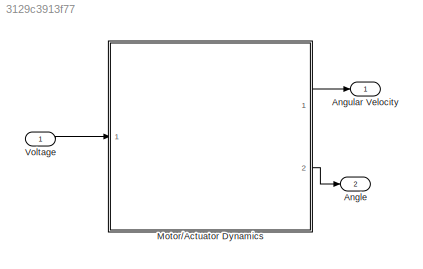
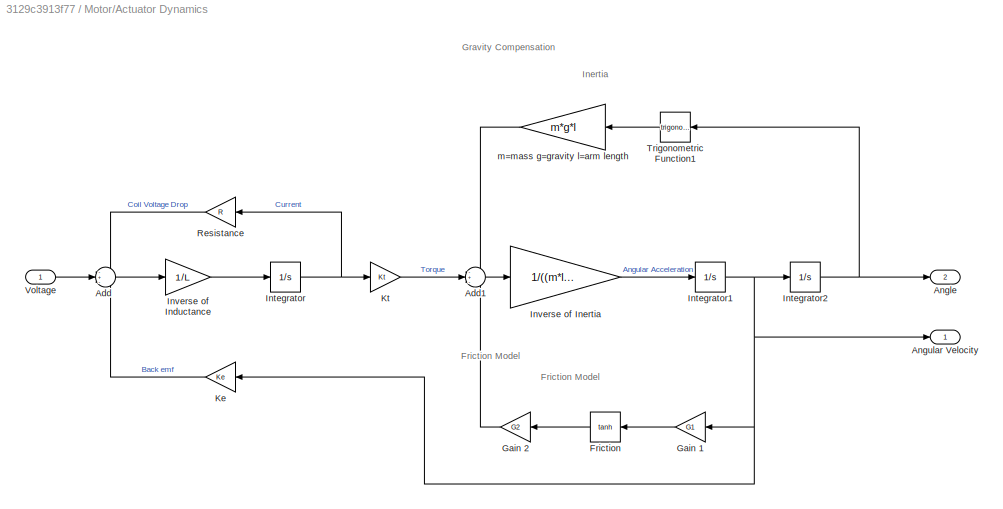
MODEL slx_3129c3913f77
KIND model
CONFIG AbsTol = auto
CONFIG FixedStep = auto
CONFIG MaxStep = auto
CONFIG MinStep = auto
CONFIG RelTol = 1e-3
CONFIG SampleTimeConstraint = Unconstrained
CONFIG Solver = VariableStepAuto
CONFIG SolverMode = Auto
CONFIG SolverName = VariableStepAuto
CONFIG StartTime = 0.0
CONFIG StopTime = 3.0
BLOCK [Outport] Angle
  IconDisplay = Port number
  Port = 2
BLOCK [Outport] Angular Velocity
  IconDisplay = Port number
BLOCK [SubSystem] Motor//Actuator Dynamics
  Ports = [1, 2]
  RequestExecContextInheritance = off
  Variant = off
BLOCK [Sum] Motor//Actuator Dynamics/Add
  IconShape = round
  InputSameDT = off
  Inputs = -+-
  OutDataTypeStr = Inherit: Inherit via internal rule
  Ports = [3, 1]
  SaturateOnIntegerOverflow = off
BLOCK [Sum] Motor//Actuator Dynamics/Add1
  IconShape = round
  InputSameDT = off
  Inputs = -+-
  OutDataTypeStr = Inherit: Inherit via internal rule
  Ports = [3, 1]
  SaturateOnIntegerOverflow = off
BLOCK [Outport] Motor//Actuator Dynamics/Angle
  IconDisplay = Port number
  Port = 2
BLOCK [Outport] Motor//Actuator Dynamics/Angular Velocity
  IconDisplay = Port number
BLOCK [Trigonometry] Motor//Actuator Dynamics/Friction 
  Operator = tanh
  Ports = [1, 1]
BLOCK [Gain] Motor//Actuator Dynamics/Gain 1
  Gain = G1
  OutDataTypeStr = Inherit: Inherit via internal rule
  ParamDataTypeStr = Inherit: Inherit via internal rule
  SaturateOnIntegerOverflow = off
BLOCK [Gain] Motor//Actuator Dynamics/Gain 2
  Gain = G2
  OutDataTypeStr = Inherit: Inherit via internal rule
  ParamDataTypeStr = Inherit: Inherit via internal rule
  SaturateOnIntegerOverflow = off
BLOCK [Integrator] Motor//Actuator Dynamics/Integrator
  Ports = [1, 1]
BLOCK [Integrator] Motor//Actuator Dynamics/Integrator1
  Ports = [1, 1]
BLOCK [Integrator] Motor//Actuator Dynamics/Integrator2
  Ports = [1, 1]
BLOCK [Gain] Motor//Actuator Dynamics/Inverse of Inductance
  Gain = 1/L
  OutDataTypeStr = Inherit: Inherit via internal rule
  ParamDataTypeStr = Inherit: Inherit via internal rule
  SaturateOnIntegerOverflow = off
BLOCK [Gain] Motor//Actuator Dynamics/Inverse of Inertia 
  Gain = 1/((m*l*l/3)+J)
  OutDataTypeStr = Inherit: Inherit via internal rule
  ParamDataTypeStr = Inherit: Inherit via internal rule
  SaturateOnIntegerOverflow = off
BLOCK [Gain] Motor//Actuator Dynamics/Ke 
  Gain = Ke
  OutDataTypeStr = Inherit: Inherit via internal rule
  ParamDataTypeStr = Inherit: Inherit via internal rule
  SaturateOnIntegerOverflow = off
BLOCK [Gain] Motor//Actuator Dynamics/Kt 
  Gain = Kt
  OutDataTypeStr = Inherit: Inherit via internal rule
  ParamDataTypeStr = Inherit: Inherit via internal rule
  SaturateOnIntegerOverflow = off
BLOCK [Gain] Motor//Actuator Dynamics/Resistance 
  Gain = R
  OutDataTypeStr = Inherit: Inherit via internal rule
  ParamDataTypeStr = Inherit: Inherit via internal rule
  SaturateOnIntegerOverflow = off
BLOCK [Trigonometry] Motor//Actuator Dynamics/Trigonometric Function1
  Ports = [1, 1]
BLOCK [Inport] Motor//Actuator Dynamics/Voltage
  IconDisplay = Port number
BLOCK [Gain] Motor//Actuator Dynamics/m=mass g=gravity l=arm length
  Gain = m*g*l
  OutDataTypeStr = Inherit: Inherit via internal rule
  ParamDataTypeStr = Inherit: Inherit via internal rule
  SaturateOnIntegerOverflow = off
BLOCK [Inport] Voltage
  IconDisplay = Port number
ANNOTATION Motor//Actuator Dynamics: Friction Model
ANNOTATION Motor//Actuator Dynamics: Gravity Compensation
ANNOTATION Motor//Actuator Dynamics: Inertia
LINE Motor//Actuator Dynamics/Add1:1 -> Motor//Actuator Dynamics/Inverse of Inertia :1
LINE Motor//Actuator Dynamics/Add:1 -> Motor//Actuator Dynamics/Inverse of Inductance:1
LINE Motor//Actuator Dynamics/Friction :1 -> Motor//Actuator Dynamics/Gain 2:1
LINE Motor//Actuator Dynamics/Gain 1:1 -> Motor//Actuator Dynamics/Friction :1
LINE Motor//Actuator Dynamics/Gain 2:1 -> Motor//Actuator Dynamics/Add1:3
NET Motor//Actuator Dynamics/Integrator1:1 -> Motor//Actuator Dynamics/Angular Velocity:1, Motor//Actuator Dynamics/Gain 1:1, Motor//Actuator Dynamics/Integrator2:1, Motor//Actuator Dynamics/Ke :1
NET Motor//Actuator Dynamics/Integrator2:1 -> Motor//Actuator Dynamics/Angle:1, Motor//Actuator Dynamics/Trigonometric Function1:1
NET Motor//Actuator Dynamics/Integrator:1 -> Motor//Actuator Dynamics/Kt :1, Motor//Actuator Dynamics/Resistance :1
LINE Motor//Actuator Dynamics/Inverse of Inductance:1 -> Motor//Actuator Dynamics/Integrator:1
LINE Motor//Actuator Dynamics/Inverse of Inertia :1 -> Motor//Actuator Dynamics/Integrator1:1
LINE Motor//Actuator Dynamics/Ke :1 -> Motor//Actuator Dynamics/Add:3
LINE Motor//Actuator Dynamics/Kt :1 -> Motor//Actuator Dynamics/Add1:2
LINE Motor//Actuator Dynamics/Resistance :1 -> Motor//Actuator Dynamics/Add:1
LINE Motor//Actuator Dynamics/Trigonometric Function1:1 -> Motor//Actuator Dynamics/m=mass g=gravity l=arm length:1
LINE Motor//Actuator Dynamics/Voltage:1 -> Motor//Actuator Dynamics/Add:2
LINE Motor//Actuator Dynamics/m=mass g=gravity l=arm length:1 -> Motor//Actuator Dynamics/Add1:1
LINE Motor//Actuator Dynamics:1 -> Angular Velocity:1
LINE Motor//Actuator Dynamics:2 -> Angle:1
LINE Voltage:1 -> Motor//Actuator Dynamics:1
note: NET lines group one-source signal fan-out (src -> all destinations, sorted); 1:1 wires keep LINE
